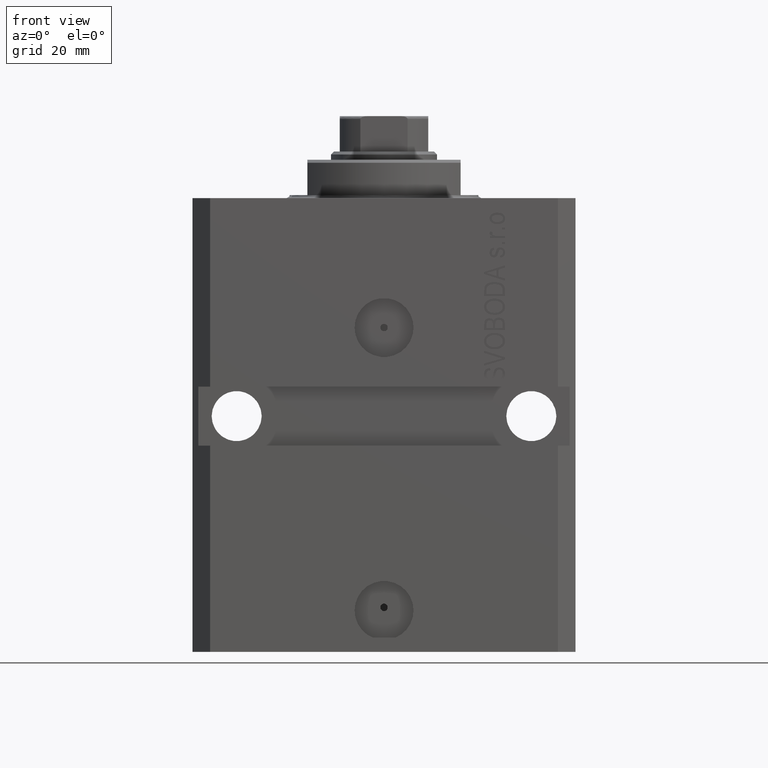
[diagram: clean part render]
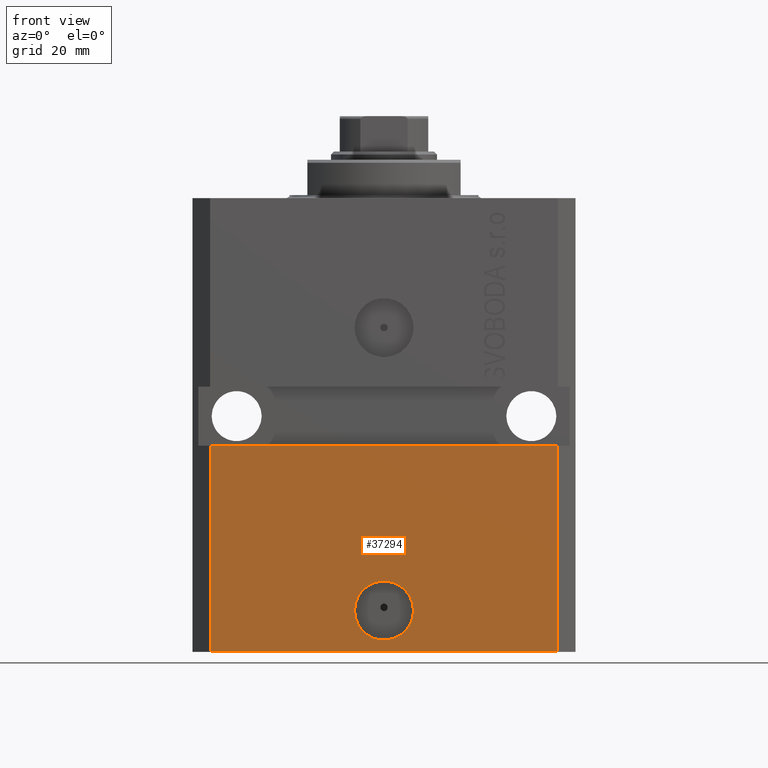
[diagram: same view with one face highlighted and labeled with its STEP entity id]
A machine part, front view. The second image highlights one B-rep face of the part: STEP entity #37294.
In plain terms, the highlighted planar face has unit normal (0, -1, 0).
Its self-contained STEP definition (entity closure, byte-faithful):
#551 = EDGE_CURVE ( 'NONE', #2281, #18532, #730, .T. ) ;
#730 = LINE ( 'NONE', #15284, #20575 ) ;
#783 = VERTEX_POINT ( 'NONE', #15412 ) ;
#2281 = VERTEX_POINT ( 'NONE', #27921 ) ;
#2358 = CARTESIAN_POINT ( 'NONE',  ( -29.49999999999650413, -22.49999999999949907, -77.00000000000000000 ) ) ;
#2703 = EDGE_LOOP ( 'NONE', ( #22529, #29593 ) ) ;
#4257 = DIRECTION ( 'NONE',  ( 1.176083712526788232E-16, -1.000000000000000000, 0.000000000000000000 ) ) ;
#6218 = CARTESIAN_POINT ( 'NONE',  ( 29.49999999999650058, -22.49999999999949196, -41.99999999999998579 ) ) ;
#7182 = DIRECTION ( 'NONE',  ( 1.000000000000000000, 0.000000000000000000, 0.000000000000000000 ) ) ;
#8081 = CARTESIAN_POINT ( 'NONE',  ( -29.49999999999650413, -22.49999999999949907, -77.00000000000000000 ) ) ;
#9158 = EDGE_LOOP ( 'NONE', ( #32373, #43181, #9327, #35110 ) ) ;
#9327 = ORIENTED_EDGE ( 'NONE', *, *, #34111, .T. ) ;
#9522 = DIRECTION ( 'NONE',  ( 1.176083712526788232E-16, -1.000000000000000000, 0.000000000000000000 ) ) ;
#9713 = LINE ( 'NONE', #23554, #37070 ) ;
#10574 = CARTESIAN_POINT ( 'NONE',  ( -5.000000000000002665, -22.49999999999949551, -69.99999999999998579 ) ) ;
#15284 = CARTESIAN_POINT ( 'NONE',  ( 29.49999999999650413, -22.49999999999949196, -77.00000000000000000 ) ) ;
#15412 = CARTESIAN_POINT ( 'NONE',  ( -29.49999999999650413, -22.49999999999949907, -77.00000000000000000 ) ) ;
#17445 = VECTOR ( 'NONE', #46036, 1000.000000000000000 ) ;
#18532 = VERTEX_POINT ( 'NONE', #6218 ) ;
#18823 = DIRECTION ( 'NONE',  ( 1.000000000000000000, 1.176083712526788232E-16, 0.000000000000000000 ) ) ;
#18908 = EDGE_CURVE ( 'NONE', #35541, #18532, #22833, .T. ) ;
#19056 = AXIS2_PLACEMENT_3D ( 'NONE', #8081, #4257, #18823 ) ;
#19725 = DIRECTION ( 'NONE',  ( 1.000000000000000000, 1.067522139062765303E-16, 1.067522139062765303E-16 ) ) ;
#20575 = VECTOR ( 'NONE', #29831, 1000.000000000000000 ) ;
#20701 = DIRECTION ( 'NONE',  ( 0.000000000000000000, 0.000000000000000000, 1.000000000000000000 ) ) ;
#22529 = ORIENTED_EDGE ( 'NONE', *, *, #45365, .F. ) ;
#22833 = LINE ( 'NONE', #37388, #40694 ) ;
#23554 = CARTESIAN_POINT ( 'NONE',  ( -29.49999999999650413, -22.49999999999949907, -77.00000000000000000 ) ) ;
#24062 = DIRECTION ( 'NONE',  ( 1.000000000000000000, 0.000000000000000000, 0.000000000000000000 ) ) ;
#25019 = EDGE_CURVE ( 'NONE', #783, #35541, #9713, .T. ) ;
#25664 = CARTESIAN_POINT ( 'NONE',  ( -29.49999999999650413, -22.49999999999949907, -41.99999999999999289 ) ) ;
#25678 = CIRCLE ( 'NONE', #28740, 5.000000000000005329 ) ;
#26070 = VERTEX_POINT ( 'NONE', #27627 ) ;
#27627 = CARTESIAN_POINT ( 'NONE',  ( 5.000000000000007994, -22.49999999999949551, -69.99999999999998579 ) ) ;
#27646 = CARTESIAN_POINT ( 'NONE',  ( 2.646188353185214061E-15, -22.49999999999949551, -69.99999999999998579 ) ) ;
#27921 = CARTESIAN_POINT ( 'NONE',  ( 29.49999999999650413, -22.49999999999949196, -77.00000000000000000 ) ) ;
#28201 = EDGE_CURVE ( 'NONE', #30272, #26070, #44813, .T. ) ;
#28740 = AXIS2_PLACEMENT_3D ( 'NONE', #27646, #9522, #24062 ) ;
#28883 = DIRECTION ( 'NONE',  ( 1.176083712526788232E-16, -1.000000000000000000, 0.000000000000000000 ) ) ;
#29593 = ORIENTED_EDGE ( 'NONE', *, *, #28201, .F. ) ;
#29831 = DIRECTION ( 'NONE',  ( 0.000000000000000000, 0.000000000000000000, 1.000000000000000000 ) ) ;
#30037 = FACE_BOUND ( 'NONE', #2703, .T. ) ;
#30272 = VERTEX_POINT ( 'NONE', #10574 ) ;
#31241 = LINE ( 'NONE', #2358, #17445 ) ;
#32373 = ORIENTED_EDGE ( 'NONE', *, *, #18908, .F. ) ;
#32946 = CARTESIAN_POINT ( 'NONE',  ( 2.646188353185214061E-15, -22.49999999999949551, -69.99999999999998579 ) ) ;
#33381 = FACE_OUTER_BOUND ( 'NONE', #9158, .T. ) ;
#34111 = EDGE_CURVE ( 'NONE', #783, #2281, #31241, .T. ) ;
#35110 = ORIENTED_EDGE ( 'NONE', *, *, #551, .T. ) ;
#35541 = VERTEX_POINT ( 'NONE', #25664 ) ;
#37070 = VECTOR ( 'NONE', #20701, 1000.000000000000000 ) ;
#37294 = ADVANCED_FACE ( 'NONE', ( #30037, #33381 ), #44826, .T. ) ;
#37388 = CARTESIAN_POINT ( 'NONE',  ( -32.49999999999650413, -22.49999999999949907, -41.99999999999999289 ) ) ;
#40694 = VECTOR ( 'NONE', #19725, 1000.000000000000000 ) ;
#41769 = AXIS2_PLACEMENT_3D ( 'NONE', #32946, #28883, #7182 ) ;
#43181 = ORIENTED_EDGE ( 'NONE', *, *, #25019, .F. ) ;
#44813 = CIRCLE ( 'NONE', #41769, 5.000000000000005329 ) ;
#44826 = PLANE ( 'NONE',  #19056 ) ;
#45365 = EDGE_CURVE ( 'NONE', #26070, #30272, #25678, .T. ) ;
#46036 = DIRECTION ( 'NONE',  ( 1.000000000000000000, 1.176083712526788232E-16, 0.000000000000000000 ) ) ;